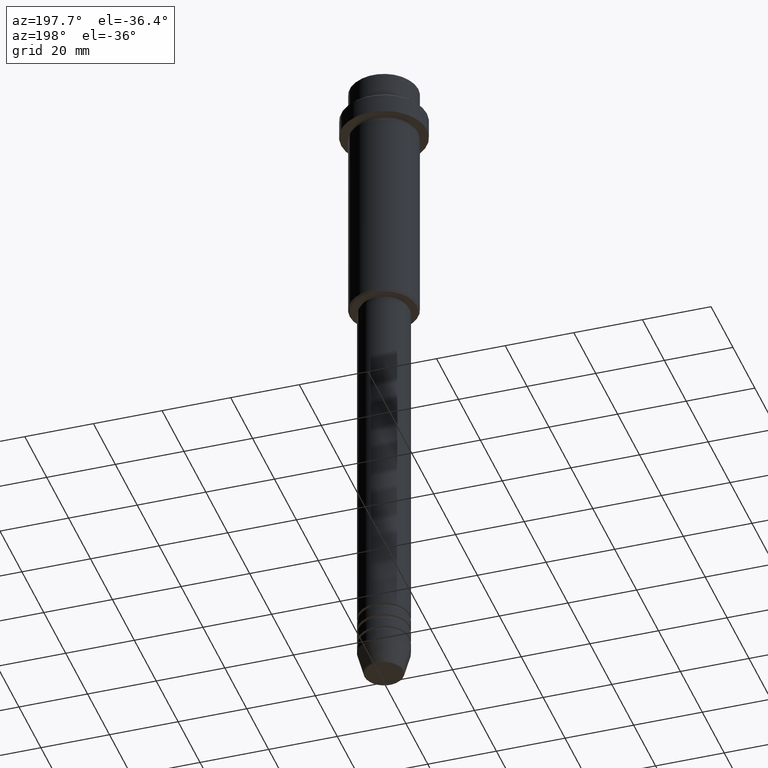
[diagram: clean part render]
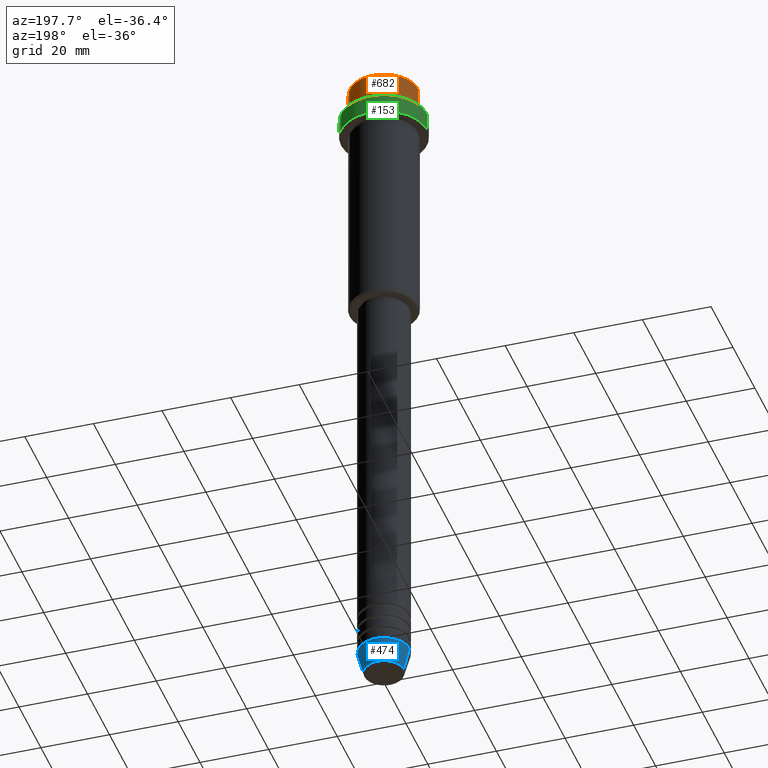
[diagram: same view with three faces highlighted in distinct colors, each labeled with its STEP entity id]
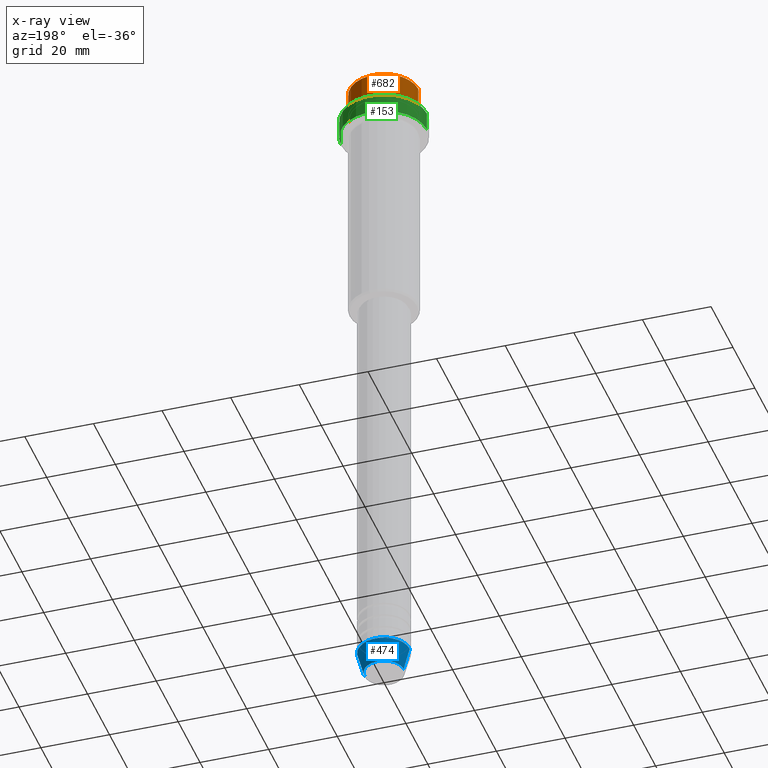
[diagram: x-ray of the same camera — body ghosted, the three highlighted faces saturated]
A machine part, auxiliary view with three faces highlighted in distinct colors.
The next image is the same camera in x-ray (body ghosted, the three faces saturated) — at least one of them is partly hidden behind the body in this view.
Their STEP definitions:

[orange] entity #682 — the highlighted cylindrical surface (edge-blend (fillet) strip) has radius 10 mm, axis along (-0, -0, 1).
#1 = CARTESIAN_POINT ( 'NONE',  ( 9.999999999999998224, 0.000000000000000000, -7.999999999999998224 ) ) ;
#41 = VERTEX_POINT ( 'NONE', #359 ) ;
#67 = ORIENTED_EDGE ( 'NONE', *, *, #90, .T. ) ;
#81 = AXIS2_PLACEMENT_3D ( 'NONE', #1349, #915, #702 ) ;
#90 = EDGE_CURVE ( 'NONE', #989, #821, #1256, .T. ) ;
#216 = VECTOR ( 'NONE', #280, 1000.000000000000000 ) ;
#246 = VECTOR ( 'NONE', #262, 1000.000000000000000 ) ;
#262 = DIRECTION ( 'NONE',  ( -0.000000000000000000, -0.000000000000000000, 1.000000000000000000 ) ) ;
#280 = DIRECTION ( 'NONE',  ( -0.000000000000000000, -0.000000000000000000, 1.000000000000000000 ) ) ;
#338 = AXIS2_PLACEMENT_3D ( 'NONE', #1023, #380, #1028 ) ;
#359 = CARTESIAN_POINT ( 'NONE',  ( 9.999999999999998224, 0.000000000000000000, -0.4999999999999970024 ) ) ;
#360 = CIRCLE ( 'NONE', #81, 9.999999999999998224 ) ;
#380 = DIRECTION ( 'NONE',  ( -0.000000000000000000, -0.000000000000000000, 1.000000000000000000 ) ) ;
#504 = CARTESIAN_POINT ( 'NONE',  ( -9.999999999999998224, 1.224646799147353059E-15, -7.999999999999998224 ) ) ;
#511 = CARTESIAN_POINT ( 'NONE',  ( -9.999999999999998224, 1.224646799147353059E-15, 0.000000000000000000 ) ) ;
#551 = LINE ( 'NONE', #1329, #246 ) ;
#638 = DIRECTION ( 'NONE',  ( -0.000000000000000000, -0.000000000000000000, 1.000000000000000000 ) ) ;
#682 = ADVANCED_FACE ( 'NONE', ( #871 ), #878, .T. ) ;
#696 = AXIS2_PLACEMENT_3D ( 'NONE', #773, #638, #763 ) ;
#702 = DIRECTION ( 'NONE',  ( 1.000000000000000000, 0.000000000000000000, 0.000000000000000000 ) ) ;
#724 = ORIENTED_EDGE ( 'NONE', *, *, #1262, .F. ) ;
#763 = DIRECTION ( 'NONE',  ( 1.000000000000000000, 0.000000000000000000, 0.000000000000000000 ) ) ;
#773 = CARTESIAN_POINT ( 'NONE',  ( 0.000000000000000000, 0.000000000000000000, 0.000000000000000000 ) ) ;
#805 = EDGE_CURVE ( 'NONE', #1207, #989, #1107, .T. ) ;
#816 = EDGE_CURVE ( 'NONE', #821, #41, #360, .T. ) ;
#821 = VERTEX_POINT ( 'NONE', #1103 ) ;
#824 = EDGE_LOOP ( 'NONE', ( #1163, #67, #1136, #724 ) ) ;
#871 = FACE_OUTER_BOUND ( 'NONE', #824, .T. ) ;
#878 = CYLINDRICAL_SURFACE ( 'NONE', #696, 9.999999999999998224 ) ;
#915 = DIRECTION ( 'NONE',  ( 0.000000000000000000, 0.000000000000000000, -1.000000000000000000 ) ) ;
#989 = VERTEX_POINT ( 'NONE', #504 ) ;
#1023 = CARTESIAN_POINT ( 'NONE',  ( 0.000000000000000000, 0.000000000000000000, -7.999999999999998224 ) ) ;
#1028 = DIRECTION ( 'NONE',  ( 1.000000000000000000, 0.000000000000000000, 0.000000000000000000 ) ) ;
#1103 = CARTESIAN_POINT ( 'NONE',  ( -9.999999999999998224, 1.224646799147353059E-15, -0.4999999999999970024 ) ) ;
#1107 = CIRCLE ( 'NONE', #338, 9.999999999999998224 ) ;
#1136 = ORIENTED_EDGE ( 'NONE', *, *, #816, .T. ) ;
#1163 = ORIENTED_EDGE ( 'NONE', *, *, #805, .T. ) ;
#1207 = VERTEX_POINT ( 'NONE', #1 ) ;
#1256 = LINE ( 'NONE', #511, #216 ) ;
#1262 = EDGE_CURVE ( 'NONE', #1207, #41, #551, .T. ) ;
#1329 = CARTESIAN_POINT ( 'NONE',  ( 9.999999999999998224, 0.000000000000000000, 0.000000000000000000 ) ) ;
#1349 = CARTESIAN_POINT ( 'NONE',  ( 0.000000000000000000, 0.000000000000000000, -0.4999999999999970024 ) ) ;

[blue] entity #474 — the highlighted conical surface has half-angle 15 deg.
#48 = EDGE_CURVE ( 'NONE', #53, #705, #1361, .T. ) ;
#53 = VERTEX_POINT ( 'NONE', #185 ) ;
#60 = DIRECTION ( 'NONE',  ( -0.2588190451025213501, 3.169619151431772337E-17, 0.9659258262890680902 ) ) ;
#78 = FACE_OUTER_BOUND ( 'NONE', #306, .T. ) ;
#149 = AXIS2_PLACEMENT_3D ( 'NONE', #503, #525, #1286 ) ;
#154 = AXIS2_PLACEMENT_3D ( 'NONE', #954, #849, #1402 ) ;
#159 = ORIENTED_EDGE ( 'NONE', *, *, #709, .F. ) ;
#185 = CARTESIAN_POINT ( 'NONE',  ( -5.723655072137191269, 8.097153428560735915E-16, -199.6294095225512706 ) ) ;
#187 = CARTESIAN_POINT ( 'NONE',  ( 7.500000000000000000, 0.000000000000000000, -193.0000000000000000 ) ) ;
#214 = CARTESIAN_POINT ( 'NONE',  ( 0.000000000000000000, 0.000000000000000000, -193.0000000000000000 ) ) ;
#238 = VECTOR ( 'NONE', #60, 1000.000000000000000 ) ;
#306 = EDGE_LOOP ( 'NONE', ( #1314, #718, #159, #780 ) ) ;
#342 = VERTEX_POINT ( 'NONE', #642 ) ;
#407 = VECTOR ( 'NONE', #880, 1000.000000000000000 ) ;
#445 = DIRECTION ( 'NONE',  ( -0.000000000000000000, -0.000000000000000000, 1.000000000000000000 ) ) ;
#474 = ADVANCED_FACE ( 'NONE', ( #78 ), #1310, .T. ) ;
#503 = CARTESIAN_POINT ( 'NONE',  ( 0.000000000000000000, 0.000000000000000000, -193.0000000000000000 ) ) ;
#505 = CARTESIAN_POINT ( 'NONE',  ( -7.500000000000000000, 9.184850993605147944E-16, -193.0000000000000000 ) ) ;
#512 = VERTEX_POINT ( 'NONE', #187 ) ;
#525 = DIRECTION ( 'NONE',  ( -0.000000000000000000, -0.000000000000000000, 1.000000000000000000 ) ) ;
#642 = CARTESIAN_POINT ( 'NONE',  ( 5.723655072137191269, 0.000000000000000000, -199.6294095225512706 ) ) ;
#648 = CIRCLE ( 'NONE', #767, 7.500000000000000000 ) ;
#705 = VERTEX_POINT ( 'NONE', #1194 ) ;
#709 = EDGE_CURVE ( 'NONE', #512, #705, #648, .T. ) ;
#718 = ORIENTED_EDGE ( 'NONE', *, *, #48, .T. ) ;
#767 = AXIS2_PLACEMENT_3D ( 'NONE', #214, #445, #1094 ) ;
#768 = CIRCLE ( 'NONE', #154, 5.723655072137191269 ) ;
#780 = ORIENTED_EDGE ( 'NONE', *, *, #1109, .F. ) ;
#849 = DIRECTION ( 'NONE',  ( -0.000000000000000000, -0.000000000000000000, 1.000000000000000000 ) ) ;
#880 = DIRECTION ( 'NONE',  ( 0.2588190451025213501, 0.000000000000000000, 0.9659258262890680902 ) ) ;
#954 = CARTESIAN_POINT ( 'NONE',  ( 0.000000000000000000, 0.000000000000000000, -199.6294095225512706 ) ) ;
#975 = LINE ( 'NONE', #1095, #407 ) ;
#1078 = EDGE_CURVE ( 'NONE', #342, #53, #768, .T. ) ;
#1094 = DIRECTION ( 'NONE',  ( 1.000000000000000000, 0.000000000000000000, 0.000000000000000000 ) ) ;
#1095 = CARTESIAN_POINT ( 'NONE',  ( 7.500000000000000000, 0.000000000000000000, -193.0000000000000000 ) ) ;
#1109 = EDGE_CURVE ( 'NONE', #342, #512, #975, .T. ) ;
#1194 = CARTESIAN_POINT ( 'NONE',  ( -7.500000000000000000, 9.184850993605147944E-16, -193.0000000000000000 ) ) ;
#1286 = DIRECTION ( 'NONE',  ( 1.000000000000000000, 0.000000000000000000, 0.000000000000000000 ) ) ;
#1310 = CONICAL_SURFACE ( 'NONE', #149, 7.500000000000000000, 0.2617993877991500740 ) ;
#1314 = ORIENTED_EDGE ( 'NONE', *, *, #1078, .T. ) ;
#1361 = LINE ( 'NONE', #505, #238 ) ;
#1402 = DIRECTION ( 'NONE',  ( 1.000000000000000000, 0.000000000000000000, 0.000000000000000000 ) ) ;

[green] entity #153 — the highlighted cylindrical surface (partial cylindrical patch) has radius 12.5 mm, axis along (-0, -0, 1).
#2 = EDGE_CURVE ( 'NONE', #70, #630, #1375, .T. ) ;
#55 = AXIS2_PLACEMENT_3D ( 'NONE', #1160, #733, #828 ) ;
#70 = VERTEX_POINT ( 'NONE', #947 ) ;
#83 = DIRECTION ( 'NONE',  ( -0.000000000000000000, -0.000000000000000000, 1.000000000000000000 ) ) ;
#153 = ADVANCED_FACE ( 'NONE', ( #1384 ), #614, .T. ) ;
#172 = AXIS2_PLACEMENT_3D ( 'NONE', #392, #83, #399 ) ;
#184 = CARTESIAN_POINT ( 'NONE',  ( -12.50000000000000000, 1.530808498934191521E-15, -15.00000000000000000 ) ) ;
#193 = ORIENTED_EDGE ( 'NONE', *, *, #2, .T. ) ;
#270 = VECTOR ( 'NONE', #712, 1000.000000000000000 ) ;
#282 = CARTESIAN_POINT ( 'NONE',  ( -12.50000000000000000, 1.530808498934191521E-15, 0.000000000000000000 ) ) ;
#392 = CARTESIAN_POINT ( 'NONE',  ( 0.000000000000000000, 0.000000000000000000, 0.000000000000000000 ) ) ;
#395 = LINE ( 'NONE', #826, #1246 ) ;
#399 = DIRECTION ( 'NONE',  ( 1.000000000000000000, 0.000000000000000000, 0.000000000000000000 ) ) ;
#417 = EDGE_CURVE ( 'NONE', #798, #1009, #580, .T. ) ;
#441 = CARTESIAN_POINT ( 'NONE',  ( 12.50000000000000000, 0.000000000000000000, -9.500000000000005329 ) ) ;
#523 = EDGE_LOOP ( 'NONE', ( #1295, #825, #193, #803 ) ) ;
#580 = CIRCLE ( 'NONE', #55, 12.50000000000000000 ) ;
#614 = CYLINDRICAL_SURFACE ( 'NONE', #172, 12.50000000000000000 ) ;
#630 = VERTEX_POINT ( 'NONE', #441 ) ;
#687 = DIRECTION ( 'NONE',  ( 0.000000000000000000, 0.000000000000000000, -1.000000000000000000 ) ) ;
#692 = AXIS2_PLACEMENT_3D ( 'NONE', #897, #687, #905 ) ;
#712 = DIRECTION ( 'NONE',  ( -0.000000000000000000, -0.000000000000000000, 1.000000000000000000 ) ) ;
#733 = DIRECTION ( 'NONE',  ( -0.000000000000000000, -0.000000000000000000, 1.000000000000000000 ) ) ;
#798 = VERTEX_POINT ( 'NONE', #1124 ) ;
#803 = ORIENTED_EDGE ( 'NONE', *, *, #957, .F. ) ;
#825 = ORIENTED_EDGE ( 'NONE', *, *, #932, .T. ) ;
#826 = CARTESIAN_POINT ( 'NONE',  ( 12.50000000000000000, 0.000000000000000000, 0.000000000000000000 ) ) ;
#828 = DIRECTION ( 'NONE',  ( 1.000000000000000000, 0.000000000000000000, 0.000000000000000000 ) ) ;
#897 = CARTESIAN_POINT ( 'NONE',  ( 0.000000000000000000, 0.000000000000000000, -9.500000000000005329 ) ) ;
#905 = DIRECTION ( 'NONE',  ( 1.000000000000000000, 0.000000000000000000, 0.000000000000000000 ) ) ;
#932 = EDGE_CURVE ( 'NONE', #1009, #70, #1259, .T. ) ;
#947 = CARTESIAN_POINT ( 'NONE',  ( -12.50000000000000000, 1.530808498934191521E-15, -9.500000000000005329 ) ) ;
#957 = EDGE_CURVE ( 'NONE', #798, #630, #395, .T. ) ;
#1009 = VERTEX_POINT ( 'NONE', #184 ) ;
#1124 = CARTESIAN_POINT ( 'NONE',  ( 12.50000000000000000, 0.000000000000000000, -15.00000000000000000 ) ) ;
#1160 = CARTESIAN_POINT ( 'NONE',  ( 0.000000000000000000, 0.000000000000000000, -15.00000000000000000 ) ) ;
#1246 = VECTOR ( 'NONE', #1265, 1000.000000000000000 ) ;
#1259 = LINE ( 'NONE', #282, #270 ) ;
#1265 = DIRECTION ( 'NONE',  ( -0.000000000000000000, -0.000000000000000000, 1.000000000000000000 ) ) ;
#1295 = ORIENTED_EDGE ( 'NONE', *, *, #417, .T. ) ;
#1375 = CIRCLE ( 'NONE', #692, 12.50000000000000000 ) ;
#1384 = FACE_OUTER_BOUND ( 'NONE', #523, .T. ) ;